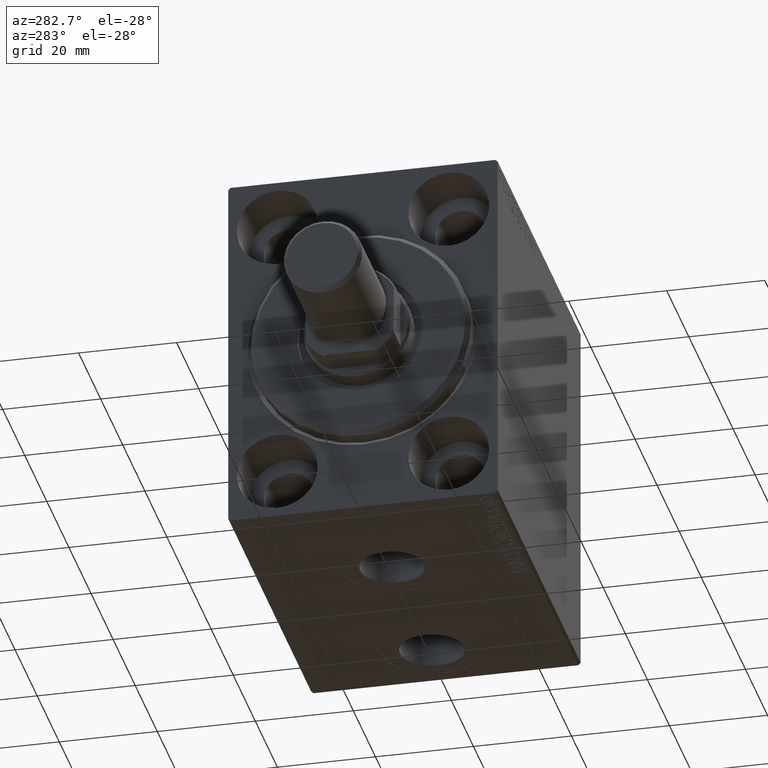
[diagram: clean part render]
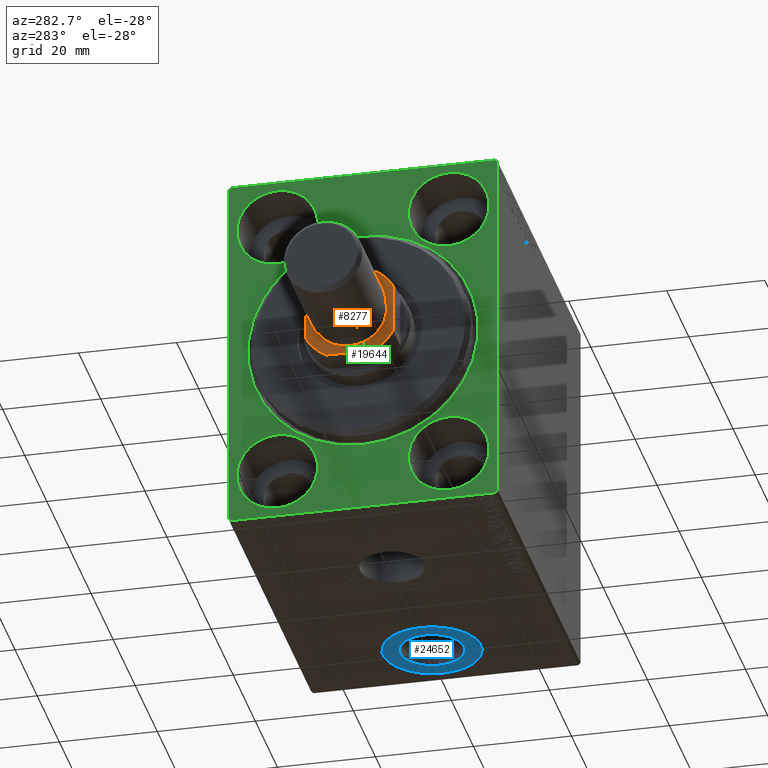
[diagram: same view with three faces highlighted in distinct colors, each labeled with its STEP entity id]
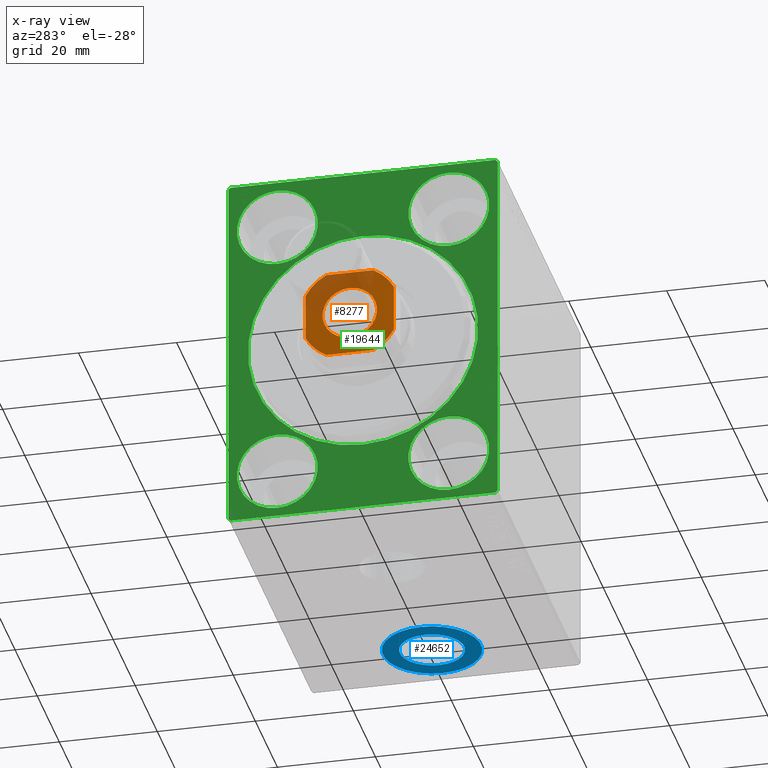
[diagram: x-ray of the same camera — body ghosted, the three highlighted faces saturated]
A machine part, auxiliary view with three faces highlighted in distinct colors.
The next image is the same camera in x-ray (body ghosted, the three faces saturated) — at least one of them is partly hidden behind the body in this view.
Their STEP definitions:

[orange] entity #8277 — the highlighted planar face has unit normal (-1, 0, 0).
#79 = EDGE_CURVE ( 'NONE', #19859, #1246, #26807, .T. ) ;
#420 = DIRECTION ( 'NONE',  ( 1.000000000000000000, 0.000000000000000000, 0.000000000000000000 ) ) ;
#1246 = VERTEX_POINT ( 'NONE', #35240 ) ;
#1555 = DIRECTION ( 'NONE',  ( 1.927470528863119049E-16, -1.000000000000000000, 0.000000000000000000 ) ) ;
#1959 = CARTESIAN_POINT ( 'NONE',  ( -4.799999999999990941, 8.999999999999998224, 77.00000000000001421 ) ) ;
#2113 = ORIENTED_EDGE ( 'NONE', *, *, #32366, .T. ) ;
#2427 = EDGE_CURVE ( 'NONE', #22392, #29616, #27539, .T. ) ;
#2476 = VECTOR ( 'NONE', #3051, 1000.000000000000000 ) ;
#2922 = DIRECTION ( 'NONE',  ( -0.000000000000000000, 0.000000000000000000, 1.000000000000000000 ) ) ;
#3051 = DIRECTION ( 'NONE',  ( 1.000000000000000000, 0.000000000000000000, 0.000000000000000000 ) ) ;
#3368 = EDGE_CURVE ( 'NONE', #27642, #13443, #26939, .T. ) ;
#3745 = ORIENTED_EDGE ( 'NONE', *, *, #43613, .T. ) ;
#4181 = DIRECTION ( 'NONE',  ( -0.000000000000000000, 0.000000000000000000, 1.000000000000000000 ) ) ;
#4270 = ORIENTED_EDGE ( 'NONE', *, *, #24819, .T. ) ;
#4877 = AXIS2_PLACEMENT_3D ( 'NONE', #18118, #4181, #17901 ) ;
#4945 = CARTESIAN_POINT ( 'NONE',  ( 0.000000000000000000, 0.000000000000000000, 77.00000000000001421 ) ) ;
#5258 = ORIENTED_EDGE ( 'NONE', *, *, #2427, .T. ) ;
#5814 = PLANE ( 'NONE',  #14004 ) ;
#6307 = VERTEX_POINT ( 'NONE', #34653 ) ;
#6482 = CARTESIAN_POINT ( 'NONE',  ( 0.000000000000000000, 0.000000000000000000, 77.00000000000001421 ) ) ;
#6722 = CARTESIAN_POINT ( 'NONE',  ( -9.000000000000001776, 8.999999999999998224, 77.00000000000001421 ) ) ;
#6816 = EDGE_CURVE ( 'NONE', #1246, #19859, #25558, .T. ) ;
#7432 = AXIS2_PLACEMENT_3D ( 'NONE', #4945, #18660, #7876 ) ;
#7876 = DIRECTION ( 'NONE',  ( 1.000000000000000000, 0.000000000000000000, 0.000000000000000000 ) ) ;
#8277 = ADVANCED_FACE ( 'NONE', ( #33902, #30531 ), #5814, .T. ) ;
#8721 = CIRCLE ( 'NONE', #36693, 10.19999999999999929 ) ;
#8967 = DIRECTION ( 'NONE',  ( -0.000000000000000000, 0.000000000000000000, 1.000000000000000000 ) ) ;
#10476 = CARTESIAN_POINT ( 'NONE',  ( -8.999999999999998224, -9.000000000000001776, 77.00000000000001421 ) ) ;
#11221 = VERTEX_POINT ( 'NONE', #36900 ) ;
#12330 = EDGE_LOOP ( 'NONE', ( #19745, #4270, #31729, #2113, #3745, #38046, #5258, #43104 ) ) ;
#12572 = DIRECTION ( 'NONE',  ( -1.000000000000000000, -0.000000000000000000, -0.000000000000000000 ) ) ;
#13227 = CARTESIAN_POINT ( 'NONE',  ( 0.000000000000000000, 0.000000000000000000, 77.00000000000001421 ) ) ;
#13371 = DIRECTION ( 'NONE',  ( -1.927470528863119049E-16, 1.000000000000000000, -0.000000000000000000 ) ) ;
#13443 = VERTEX_POINT ( 'NONE', #1959 ) ;
#13894 = VERTEX_POINT ( 'NONE', #14948 ) ;
#14004 = AXIS2_PLACEMENT_3D ( 'NONE', #13227, #8967, #44001 ) ;
#14044 = DIRECTION ( 'NONE',  ( 1.000000000000000000, 0.000000000000000000, 0.000000000000000000 ) ) ;
#14350 = DIRECTION ( 'NONE',  ( -0.000000000000000000, 0.000000000000000000, 1.000000000000000000 ) ) ;
#14709 = VECTOR ( 'NONE', #12572, 1000.000000000000000 ) ;
#14948 = CARTESIAN_POINT ( 'NONE',  ( -9.000000000000001776, 4.799999999999986500, 77.00000000000001421 ) ) ;
#15655 = ORIENTED_EDGE ( 'NONE', *, *, #6816, .T. ) ;
#16330 = CARTESIAN_POINT ( 'NONE',  ( 4.800000000000012257, 8.999999999999998224, 77.00000000000001421 ) ) ;
#16387 = EDGE_CURVE ( 'NONE', #6307, #36266, #36739, .T. ) ;
#17394 = CARTESIAN_POINT ( 'NONE',  ( -5.550000000000013145, 6.796789735267826558E-16, 77.00000000000001421 ) ) ;
#17901 = DIRECTION ( 'NONE',  ( 1.000000000000000000, 0.000000000000000000, 0.000000000000000000 ) ) ;
#18118 = CARTESIAN_POINT ( 'NONE',  ( 0.000000000000000000, 0.000000000000000000, 77.00000000000001421 ) ) ;
#18335 = VECTOR ( 'NONE', #13371, 1000.000000000000000 ) ;
#18660 = DIRECTION ( 'NONE',  ( 0.000000000000000000, -0.000000000000000000, -1.000000000000000000 ) ) ;
#19745 = ORIENTED_EDGE ( 'NONE', *, *, #16387, .T. ) ;
#19859 = VERTEX_POINT ( 'NONE', #17394 ) ;
#19893 = CARTESIAN_POINT ( 'NONE',  ( 8.999999999999998224, 8.999999999999998224, 77.00000000000001421 ) ) ;
#19967 = DIRECTION ( 'NONE',  ( 0.000000000000000000, -0.000000000000000000, -1.000000000000000000 ) ) ;
#20132 = CARTESIAN_POINT ( 'NONE',  ( 0.000000000000000000, 0.000000000000000000, 77.00000000000001421 ) ) ;
#20179 = ORIENTED_EDGE ( 'NONE', *, *, #79, .T. ) ;
#20667 = CARTESIAN_POINT ( 'NONE',  ( 0.000000000000000000, 0.000000000000000000, 77.00000000000001421 ) ) ;
#21459 = AXIS2_PLACEMENT_3D ( 'NONE', #20667, #14350, #420 ) ;
#22392 = VERTEX_POINT ( 'NONE', #26697 ) ;
#23557 = DIRECTION ( 'NONE',  ( 1.000000000000000000, 0.000000000000000000, 0.000000000000000000 ) ) ;
#24819 = EDGE_CURVE ( 'NONE', #36266, #27642, #38597, .T. ) ;
#25558 = CIRCLE ( 'NONE', #37041, 5.550000000000013145 ) ;
#26192 = CARTESIAN_POINT ( 'NONE',  ( 8.999999999999998224, 4.800000000000010481, 77.00000000000001421 ) ) ;
#26697 = CARTESIAN_POINT ( 'NONE',  ( -4.799999999999995381, -9.000000000000001776, 77.00000000000001421 ) ) ;
#26807 = CIRCLE ( 'NONE', #7432, 5.550000000000013145 ) ;
#26939 = LINE ( 'NONE', #6722, #14709 ) ;
#27416 = DIRECTION ( 'NONE',  ( 1.000000000000000000, 0.000000000000000000, 0.000000000000000000 ) ) ;
#27539 = LINE ( 'NONE', #10476, #2476 ) ;
#27642 = VERTEX_POINT ( 'NONE', #16330 ) ;
#28829 = VECTOR ( 'NONE', #1555, 1000.000000000000000 ) ;
#29616 = VERTEX_POINT ( 'NONE', #43297 ) ;
#29670 = CARTESIAN_POINT ( 'NONE',  ( 0.000000000000000000, 0.000000000000000000, 77.00000000000001421 ) ) ;
#30531 = FACE_OUTER_BOUND ( 'NONE', #12330, .T. ) ;
#31729 = ORIENTED_EDGE ( 'NONE', *, *, #3368, .T. ) ;
#31830 = EDGE_LOOP ( 'NONE', ( #15655, #20179 ) ) ;
#32366 = EDGE_CURVE ( 'NONE', #13443, #13894, #34394, .T. ) ;
#33902 = FACE_BOUND ( 'NONE', #31830, .T. ) ;
#34058 = DIRECTION ( 'NONE',  ( -0.000000000000000000, 0.000000000000000000, 1.000000000000000000 ) ) ;
#34394 = CIRCLE ( 'NONE', #21459, 10.19999999999999396 ) ;
#34653 = CARTESIAN_POINT ( 'NONE',  ( 9.000000000000001776, -4.800000000000007816, 77.00000000000001421 ) ) ;
#35240 = CARTESIAN_POINT ( 'NONE',  ( 5.550000000000013145, 0.000000000000000000, 77.00000000000001421 ) ) ;
#35345 = CIRCLE ( 'NONE', #36064, 10.20000000000000462 ) ;
#36064 = AXIS2_PLACEMENT_3D ( 'NONE', #20132, #34058, #14044 ) ;
#36266 = VERTEX_POINT ( 'NONE', #26192 ) ;
#36693 = AXIS2_PLACEMENT_3D ( 'NONE', #29670, #2922, #27416 ) ;
#36739 = LINE ( 'NONE', #19893, #18335 ) ;
#36900 = CARTESIAN_POINT ( 'NONE',  ( -8.999999999999998224, -4.799999999999999822, 77.00000000000001421 ) ) ;
#37041 = AXIS2_PLACEMENT_3D ( 'NONE', #6482, #19967, #23557 ) ;
#38046 = ORIENTED_EDGE ( 'NONE', *, *, #42668, .T. ) ;
#38597 = CIRCLE ( 'NONE', #4877, 10.20000000000000462 ) ;
#39979 = CARTESIAN_POINT ( 'NONE',  ( -9.000000000000001776, 8.999999999999998224, 77.00000000000001421 ) ) ;
#41946 = EDGE_CURVE ( 'NONE', #29616, #6307, #35345, .T. ) ;
#42668 = EDGE_CURVE ( 'NONE', #11221, #22392, #8721, .T. ) ;
#42909 = LINE ( 'NONE', #39979, #28829 ) ;
#43104 = ORIENTED_EDGE ( 'NONE', *, *, #41946, .T. ) ;
#43297 = CARTESIAN_POINT ( 'NONE',  ( 4.800000000000006928, -9.000000000000001776, 77.00000000000001421 ) ) ;
#43613 = EDGE_CURVE ( 'NONE', #13894, #11221, #42909, .T. ) ;
#44001 = DIRECTION ( 'NONE',  ( 1.000000000000000000, 0.000000000000000000, 0.000000000000000000 ) ) ;

[blue] entity #24652 — the highlighted planar face has unit normal (0, 0, -1).
#2605 = ORIENTED_EDGE ( 'NONE', *, *, #44382, .T. ) ;
#4464 = EDGE_CURVE ( 'NONE', #29750, #41825, #26238, .T. ) ;
#5103 = CARTESIAN_POINT ( 'NONE',  ( 62.49999999999999289, -7.523326685254106813E-15, -37.39999999999999858 ) ) ;
#5157 = AXIS2_PLACEMENT_3D ( 'NONE', #25418, #38238, #8343 ) ;
#5548 = DIRECTION ( 'NONE',  ( 0.000000000000000000, 0.000000000000000000, -1.000000000000000000 ) ) ;
#6905 = DIRECTION ( 'NONE',  ( -1.000000000000000000, 0.000000000000000000, -0.000000000000000000 ) ) ;
#7777 = AXIS2_PLACEMENT_3D ( 'NONE', #37678, #30724, #6905 ) ;
#8343 = DIRECTION ( 'NONE',  ( -1.000000000000000000, 0.000000000000000000, 0.000000000000000000 ) ) ;
#8510 = DIRECTION ( 'NONE',  ( 0.000000000000000000, 0.000000000000000000, -1.000000000000000000 ) ) ;
#9365 = AXIS2_PLACEMENT_3D ( 'NONE', #42656, #8510, #35922 ) ;
#9603 = FACE_BOUND ( 'NONE', #26368, .T. ) ;
#11636 = DIRECTION ( 'NONE',  ( -1.000000000000000000, 0.000000000000000000, 0.000000000000000000 ) ) ;
#12522 = AXIS2_PLACEMENT_3D ( 'NONE', #5103, #5548, #11636 ) ;
#12950 = ORIENTED_EDGE ( 'NONE', *, *, #4464, .F. ) ;
#13503 = EDGE_CURVE ( 'NONE', #41825, #29750, #36899, .T. ) ;
#16463 = DIRECTION ( 'NONE',  ( 0.000000000000000000, 0.000000000000000000, -1.000000000000000000 ) ) ;
#17255 = CIRCLE ( 'NONE', #9365, 10.00000000000000178 ) ;
#19719 = FACE_OUTER_BOUND ( 'NONE', #29575, .T. ) ;
#23425 = VERTEX_POINT ( 'NONE', #37727 ) ;
#23626 = ORIENTED_EDGE ( 'NONE', *, *, #13503, .F. ) ;
#24538 = CIRCLE ( 'NONE', #5157, 10.00000000000000178 ) ;
#24652 = ADVANCED_FACE ( 'NONE', ( #9603, #19719 ), #37016, .T. ) ;
#25418 = CARTESIAN_POINT ( 'NONE',  ( 62.49999999999999289, -7.523326685254106813E-15, -37.39999999999999858 ) ) ;
#25572 = VERTEX_POINT ( 'NONE', #33011 ) ;
#26238 = CIRCLE ( 'NONE', #30533, 6.580000000000002736 ) ;
#26368 = EDGE_LOOP ( 'NONE', ( #12950, #23626 ) ) ;
#27675 = ORIENTED_EDGE ( 'NONE', *, *, #35490, .T. ) ;
#29575 = EDGE_LOOP ( 'NONE', ( #2605, #27675 ) ) ;
#29750 = VERTEX_POINT ( 'NONE', #37178 ) ;
#30533 = AXIS2_PLACEMENT_3D ( 'NONE', #43203, #16463, #37354 ) ;
#30724 = DIRECTION ( 'NONE',  ( 0.000000000000000000, 0.000000000000000000, -1.000000000000000000 ) ) ;
#33011 = CARTESIAN_POINT ( 'NONE',  ( 52.49999999999999289, -7.523326685254106813E-15, -37.39999999999999858 ) ) ;
#35490 = EDGE_CURVE ( 'NONE', #23425, #25572, #17255, .T. ) ;
#35882 = CARTESIAN_POINT ( 'NONE',  ( 69.07999999999999829, -6.717509091415148559E-15, -37.39999999999999858 ) ) ;
#35922 = DIRECTION ( 'NONE',  ( -1.000000000000000000, 0.000000000000000000, 0.000000000000000000 ) ) ;
#36899 = CIRCLE ( 'NONE', #12522, 6.580000000000002736 ) ;
#37016 = PLANE ( 'NONE',  #7777 ) ;
#37178 = CARTESIAN_POINT ( 'NONE',  ( 55.91999999999998749, -7.523326685254106813E-15, -37.39999999999999858 ) ) ;
#37354 = DIRECTION ( 'NONE',  ( -1.000000000000000000, 0.000000000000000000, 0.000000000000000000 ) ) ;
#37678 = CARTESIAN_POINT ( 'NONE',  ( 62.49999999999999289, -7.523326685254106813E-15, -37.39999999999999858 ) ) ;
#37727 = CARTESIAN_POINT ( 'NONE',  ( 72.50000000000000000, -6.298679886106752964E-15, -37.39999999999999858 ) ) ;
#38238 = DIRECTION ( 'NONE',  ( 0.000000000000000000, 0.000000000000000000, -1.000000000000000000 ) ) ;
#41825 = VERTEX_POINT ( 'NONE', #35882 ) ;
#42656 = CARTESIAN_POINT ( 'NONE',  ( 62.49999999999999289, -7.523326685254106813E-15, -37.39999999999999858 ) ) ;
#43203 = CARTESIAN_POINT ( 'NONE',  ( 62.49999999999999289, -7.523326685254106813E-15, -37.39999999999999858 ) ) ;
#44382 = EDGE_CURVE ( 'NONE', #25572, #23425, #24538, .T. ) ;

[green] entity #19644 — the highlighted planar face has unit normal (1, 0, 0).
#63 = EDGE_LOOP ( 'NONE', ( #34767, #39577 ) ) ;
#135 = EDGE_CURVE ( 'NONE', #4386, #20081, #8884, .T. ) ;
#558 = ORIENTED_EDGE ( 'NONE', *, *, #1017, .F. ) ;
#1017 = EDGE_CURVE ( 'NONE', #1895, #30711, #20403, .T. ) ;
#1131 = CARTESIAN_POINT ( 'NONE',  ( 0.000000000000000000, -17.50000000000000355, -27.50000000000000355 ) ) ;
#1201 = VERTEX_POINT ( 'NONE', #10321 ) ;
#1374 = DIRECTION ( 'NONE',  ( 0.000000000000000000, 0.000000000000000000, 1.000000000000000000 ) ) ;
#1720 = ORIENTED_EDGE ( 'NONE', *, *, #14399, .F. ) ;
#1865 = EDGE_LOOP ( 'NONE', ( #8974, #558 ) ) ;
#1895 = VERTEX_POINT ( 'NONE', #9750 ) ;
#1921 = FACE_BOUND ( 'NONE', #1865, .T. ) ;
#2048 = CARTESIAN_POINT ( 'NONE',  ( 0.000000000000000000, -27.50000000000000355, 37.50000000000000000 ) ) ;
#2663 = CARTESIAN_POINT ( 'NONE',  ( 0.000000000000000000, -27.50000000000000355, -37.50000000000000000 ) ) ;
#3240 = DIRECTION ( 'NONE',  ( 0.000000000000000000, 0.000000000000000000, -1.000000000000000000 ) ) ;
#3809 = CARTESIAN_POINT ( 'NONE',  ( 0.000000000000000000, 27.00000000000001066, 37.50000000000000711 ) ) ;
#4093 = CIRCLE ( 'NONE', #31375, 8.250000000000000000 ) ;
#4386 = VERTEX_POINT ( 'NONE', #18953 ) ;
#4851 = AXIS2_PLACEMENT_3D ( 'NONE', #23288, #26878, #19931 ) ;
#5197 = DIRECTION ( 'NONE',  ( -0.000000000000000000, -0.7071067811865474617, 0.7071067811865474617 ) ) ;
#5481 = VERTEX_POINT ( 'NONE', #22055 ) ;
#5550 = CIRCLE ( 'NONE', #4851, 23.50000000000000355 ) ;
#6142 = ORIENTED_EDGE ( 'NONE', *, *, #40275, .F. ) ;
#6546 = VECTOR ( 'NONE', #18911, 1000.000000000000000 ) ;
#6628 = PLANE ( 'NONE',  #29136 ) ;
#6798 = CARTESIAN_POINT ( 'NONE',  ( 0.000000000000000000, -17.49999999999999645, 27.49999999999999645 ) ) ;
#6847 = CARTESIAN_POINT ( 'NONE',  ( 0.000000000000000000, 0.000000000000000000, 0.000000000000000000 ) ) ;
#6931 = EDGE_CURVE ( 'NONE', #20081, #4386, #32722, .T. ) ;
#7042 = LINE ( 'NONE', #21618, #16148 ) ;
#7235 = DIRECTION ( 'NONE',  ( -1.000000000000000000, 0.000000000000000000, 0.000000000000000000 ) ) ;
#7356 = DIRECTION ( 'NONE',  ( 0.000000000000000000, 0.000000000000000000, 1.000000000000000000 ) ) ;
#7506 = ORIENTED_EDGE ( 'NONE', *, *, #27251, .F. ) ;
#7721 = EDGE_CURVE ( 'NONE', #34834, #14341, #7042, .T. ) ;
#7865 = ORIENTED_EDGE ( 'NONE', *, *, #34153, .F. ) ;
#7872 = ORIENTED_EDGE ( 'NONE', *, *, #37701, .F. ) ;
#8066 = EDGE_CURVE ( 'NONE', #34834, #36885, #10576, .T. ) ;
#8069 = VERTEX_POINT ( 'NONE', #31238 ) ;
#8110 = CARTESIAN_POINT ( 'NONE',  ( 0.000000000000000000, 17.49999999999999645, -19.25000000000000355 ) ) ;
#8164 = CARTESIAN_POINT ( 'NONE',  ( 0.000000000000000000, -17.49999999999999645, 27.49999999999999645 ) ) ;
#8185 = CARTESIAN_POINT ( 'NONE',  ( 0.000000000000000000, -17.49999999999999645, 35.74999999999999289 ) ) ;
#8199 = ORIENTED_EDGE ( 'NONE', *, *, #44223, .F. ) ;
#8208 = AXIS2_PLACEMENT_3D ( 'NONE', #1131, #39338, #24733 ) ;
#8246 = VERTEX_POINT ( 'NONE', #16378 ) ;
#8667 = FACE_BOUND ( 'NONE', #37387, .T. ) ;
#8884 = CIRCLE ( 'NONE', #23958, 8.249999999999992895 ) ;
#8974 = ORIENTED_EDGE ( 'NONE', *, *, #33053, .F. ) ;
#9750 = CARTESIAN_POINT ( 'NONE',  ( 0.000000000000000000, -17.50000000000000355, -35.75000000000000711 ) ) ;
#9991 = CIRCLE ( 'NONE', #17875, 23.50000000000000355 ) ;
#10321 = CARTESIAN_POINT ( 'NONE',  ( 0.000000000000000000, -27.50000000000000355, -37.00000000000000000 ) ) ;
#10431 = DIRECTION ( 'NONE',  ( 0.000000000000000000, 0.000000000000000000, 1.000000000000000000 ) ) ;
#10576 = LINE ( 'NONE', #3809, #14802 ) ;
#10592 = VECTOR ( 'NONE', #33729, 1000.000000000000114 ) ;
#11240 = ORIENTED_EDGE ( 'NONE', *, *, #27387, .F. ) ;
#11246 = EDGE_LOOP ( 'NONE', ( #7872, #35428, #25103, #18578, #1720, #24381, #11240, #17259 ) ) ;
#11322 = DIRECTION ( 'NONE',  ( 0.000000000000000000, 0.000000000000000000, 1.000000000000000000 ) ) ;
#11473 = CARTESIAN_POINT ( 'NONE',  ( 0.000000000000000000, 17.50000000000000355, 27.49999999999999645 ) ) ;
#11712 = DIRECTION ( 'NONE',  ( 0.000000000000000000, 0.000000000000000000, -1.000000000000000000 ) ) ;
#12356 = CIRCLE ( 'NONE', #37471, 8.249999999999992895 ) ;
#12390 = CARTESIAN_POINT ( 'NONE',  ( 0.000000000000000000, -27.00000000000000355, -37.50000000000000000 ) ) ;
#12436 = DIRECTION ( 'NONE',  ( -0.000000000000000000, 0.7071067811865474617, 0.7071067811865474617 ) ) ;
#12698 = FACE_BOUND ( 'NONE', #34876, .T. ) ;
#13358 = VERTEX_POINT ( 'NONE', #41960 ) ;
#13657 = CARTESIAN_POINT ( 'NONE',  ( 0.000000000000000000, 27.49999999999999645, 37.00000000000001421 ) ) ;
#13665 = CARTESIAN_POINT ( 'NONE',  ( 0.000000000000000000, 17.50000000000000355, 27.49999999999999645 ) ) ;
#14341 = VERTEX_POINT ( 'NONE', #36399 ) ;
#14399 = EDGE_CURVE ( 'NONE', #8069, #36885, #32815, .T. ) ;
#14459 = CARTESIAN_POINT ( 'NONE',  ( 0.000000000000000000, 27.00000000000001066, 37.50000000000000711 ) ) ;
#14802 = VECTOR ( 'NONE', #17530, 1000.000000000000000 ) ;
#15391 = ORIENTED_EDGE ( 'NONE', *, *, #32227, .T. ) ;
#15584 = LINE ( 'NONE', #36251, #22618 ) ;
#15937 = DIRECTION ( 'NONE',  ( 0.000000000000000000, 0.000000000000000000, 1.000000000000000000 ) ) ;
#16148 = VECTOR ( 'NONE', #24114, 1000.000000000000000 ) ;
#16378 = CARTESIAN_POINT ( 'NONE',  ( 0.000000000000000000, 17.49999999999999645, -35.75000000000000711 ) ) ;
#16591 = EDGE_CURVE ( 'NONE', #21321, #14341, #15584, .T. ) ;
#17251 = DIRECTION ( 'NONE',  ( -1.000000000000000000, 0.000000000000000000, 0.000000000000000000 ) ) ;
#17259 = ORIENTED_EDGE ( 'NONE', *, *, #37640, .T. ) ;
#17390 = CARTESIAN_POINT ( 'NONE',  ( 0.000000000000000000, 17.49999999999999645, -27.50000000000000355 ) ) ;
#17530 = DIRECTION ( 'NONE',  ( -0.000000000000000000, 0.7071067811865426878, -0.7071067811865524577 ) ) ;
#17875 = AXIS2_PLACEMENT_3D ( 'NONE', #29652, #42482, #11712 ) ;
#18215 = CARTESIAN_POINT ( 'NONE',  ( 0.000000000000000000, 0.000000000000000000, 23.50000000000000355 ) ) ;
#18578 = ORIENTED_EDGE ( 'NONE', *, *, #8066, .T. ) ;
#18656 = DIRECTION ( 'NONE',  ( -1.000000000000000000, 0.000000000000000000, 0.000000000000000000 ) ) ;
#18911 = DIRECTION ( 'NONE',  ( 0.000000000000000000, 0.000000000000000000, -1.000000000000000000 ) ) ;
#18953 = CARTESIAN_POINT ( 'NONE',  ( 0.000000000000000000, 17.50000000000000355, 35.74999999999999289 ) ) ;
#19354 = CIRCLE ( 'NONE', #34428, 8.250000000000000000 ) ;
#19644 = ADVANCED_FACE ( 'NONE', ( #12698, #8667, #22374, #32714, #1921, #40552 ), #6628, .F. ) ;
#19758 = LINE ( 'NONE', #2663, #27083 ) ;
#19931 = DIRECTION ( 'NONE',  ( 0.000000000000000000, 0.000000000000000000, -1.000000000000000000 ) ) ;
#20081 = VERTEX_POINT ( 'NONE', #38451 ) ;
#20250 = CARTESIAN_POINT ( 'NONE',  ( 0.000000000000000000, 27.50000000000000355, -37.00000000000000000 ) ) ;
#20403 = CIRCLE ( 'NONE', #8208, 8.250000000000000000 ) ;
#21321 = VERTEX_POINT ( 'NONE', #42659 ) ;
#21618 = CARTESIAN_POINT ( 'NONE',  ( 0.000000000000000000, 27.49999999999999645, 37.50000000000000711 ) ) ;
#21796 = DIRECTION ( 'NONE',  ( 0.000000000000000000, 0.000000000000000000, 1.000000000000000000 ) ) ;
#22055 = CARTESIAN_POINT ( 'NONE',  ( 0.000000000000000000, 27.00000000000000355, -37.50000000000000000 ) ) ;
#22266 = CIRCLE ( 'NONE', #37338, 8.250000000000000000 ) ;
#22374 = FACE_BOUND ( 'NONE', #39545, .T. ) ;
#22618 = VECTOR ( 'NONE', #12436, 1000.000000000000114 ) ;
#22926 = CARTESIAN_POINT ( 'NONE',  ( 0.000000000000000000, -17.50000000000000355, -27.50000000000000355 ) ) ;
#23288 = CARTESIAN_POINT ( 'NONE',  ( 0.000000000000000000, 0.000000000000000000, 0.000000000000000000 ) ) ;
#23958 = AXIS2_PLACEMENT_3D ( 'NONE', #11473, #38882, #21796 ) ;
#24093 = DIRECTION ( 'NONE',  ( 0.000000000000000000, 0.000000000000000000, 1.000000000000000000 ) ) ;
#24114 = DIRECTION ( 'NONE',  ( 0.000000000000000000, -1.000000000000000000, -1.261617073437677999E-16 ) ) ;
#24381 = ORIENTED_EDGE ( 'NONE', *, *, #28067, .T. ) ;
#24733 = DIRECTION ( 'NONE',  ( 0.000000000000000000, 0.000000000000000000, 1.000000000000000000 ) ) ;
#25103 = ORIENTED_EDGE ( 'NONE', *, *, #7721, .F. ) ;
#26296 = AXIS2_PLACEMENT_3D ( 'NONE', #13665, #17251, #7356 ) ;
#26878 = DIRECTION ( 'NONE',  ( 1.000000000000000000, 0.000000000000000000, 0.000000000000000000 ) ) ;
#27083 = VECTOR ( 'NONE', #27594, 1000.000000000000000 ) ;
#27251 = EDGE_CURVE ( 'NONE', #40686, #8246, #4093, .T. ) ;
#27387 = EDGE_CURVE ( 'NONE', #13358, #5481, #19758, .T. ) ;
#27594 = DIRECTION ( 'NONE',  ( 0.000000000000000000, 1.000000000000000000, 0.000000000000000000 ) ) ;
#27693 = EDGE_CURVE ( 'NONE', #31269, #31339, #5550, .T. ) ;
#27984 = CARTESIAN_POINT ( 'NONE',  ( 0.000000000000000000, -17.50000000000000355, -19.25000000000000355 ) ) ;
#28067 = EDGE_CURVE ( 'NONE', #8069, #5481, #34400, .T. ) ;
#29008 = DIRECTION ( 'NONE',  ( -1.000000000000000000, 0.000000000000000000, 0.000000000000000000 ) ) ;
#29136 = AXIS2_PLACEMENT_3D ( 'NONE', #6847, #30436, #3240 ) ;
#29643 = DIRECTION ( 'NONE',  ( 0.000000000000000000, -9.251858538542970348E-17, 1.000000000000000000 ) ) ;
#29652 = CARTESIAN_POINT ( 'NONE',  ( 0.000000000000000000, 0.000000000000000000, 0.000000000000000000 ) ) ;
#30216 = VECTOR ( 'NONE', #5197, 1000.000000000000114 ) ;
#30436 = DIRECTION ( 'NONE',  ( 1.000000000000000000, 0.000000000000000000, 0.000000000000000000 ) ) ;
#30663 = DIRECTION ( 'NONE',  ( -1.000000000000000000, 0.000000000000000000, 0.000000000000000000 ) ) ;
#30711 = VERTEX_POINT ( 'NONE', #27984 ) ;
#31238 = CARTESIAN_POINT ( 'NONE',  ( 0.000000000000000000, 27.50000000000000355, -37.00000000000000000 ) ) ;
#31269 = VERTEX_POINT ( 'NONE', #40164 ) ;
#31339 = VERTEX_POINT ( 'NONE', #18215 ) ;
#31375 = AXIS2_PLACEMENT_3D ( 'NONE', #42915, #18656, #15937 ) ;
#31884 = VERTEX_POINT ( 'NONE', #41002 ) ;
#32227 = EDGE_CURVE ( 'NONE', #31339, #31269, #9991, .T. ) ;
#32714 = FACE_BOUND ( 'NONE', #63, .T. ) ;
#32722 = CIRCLE ( 'NONE', #26296, 8.249999999999992895 ) ;
#32815 = LINE ( 'NONE', #36612, #39787 ) ;
#33053 = EDGE_CURVE ( 'NONE', #30711, #1895, #19354, .T. ) ;
#33729 = DIRECTION ( 'NONE',  ( 0.000000000000000000, -0.7071067811865474617, -0.7071067811865474617 ) ) ;
#34118 = ORIENTED_EDGE ( 'NONE', *, *, #27693, .T. ) ;
#34153 = EDGE_CURVE ( 'NONE', #8246, #40686, #22266, .T. ) ;
#34400 = LINE ( 'NONE', #20250, #10592 ) ;
#34428 = AXIS2_PLACEMENT_3D ( 'NONE', #22926, #29008, #1374 ) ;
#34767 = ORIENTED_EDGE ( 'NONE', *, *, #135, .F. ) ;
#34834 = VERTEX_POINT ( 'NONE', #14459 ) ;
#34876 = EDGE_LOOP ( 'NONE', ( #15391, #34118 ) ) ;
#35428 = ORIENTED_EDGE ( 'NONE', *, *, #16591, .T. ) ;
#35990 = LINE ( 'NONE', #2048, #6546 ) ;
#36204 = LINE ( 'NONE', #12390, #30216 ) ;
#36251 = CARTESIAN_POINT ( 'NONE',  ( 0.000000000000000000, -27.50000000000000355, 37.00000000000001421 ) ) ;
#36399 = CARTESIAN_POINT ( 'NONE',  ( 0.000000000000000000, -27.00000000000001776, 37.50000000000000000 ) ) ;
#36612 = CARTESIAN_POINT ( 'NONE',  ( 0.000000000000000000, 27.50000000000000355, -37.50000000000000000 ) ) ;
#36885 = VERTEX_POINT ( 'NONE', #13657 ) ;
#37106 = VERTEX_POINT ( 'NONE', #8185 ) ;
#37338 = AXIS2_PLACEMENT_3D ( 'NONE', #17390, #30663, #10431 ) ;
#37387 = EDGE_LOOP ( 'NONE', ( #7506, #7865 ) ) ;
#37471 = AXIS2_PLACEMENT_3D ( 'NONE', #8164, #42094, #11322 ) ;
#37640 = EDGE_CURVE ( 'NONE', #13358, #1201, #36204, .T. ) ;
#37701 = EDGE_CURVE ( 'NONE', #21321, #1201, #35990, .T. ) ;
#38451 = CARTESIAN_POINT ( 'NONE',  ( 0.000000000000000000, 17.50000000000000355, 19.25000000000000000 ) ) ;
#38882 = DIRECTION ( 'NONE',  ( -1.000000000000000000, 0.000000000000000000, 0.000000000000000000 ) ) ;
#39338 = DIRECTION ( 'NONE',  ( -1.000000000000000000, 0.000000000000000000, 0.000000000000000000 ) ) ;
#39545 = EDGE_LOOP ( 'NONE', ( #6142, #8199 ) ) ;
#39577 = ORIENTED_EDGE ( 'NONE', *, *, #6931, .F. ) ;
#39787 = VECTOR ( 'NONE', #29643, 1000.000000000000000 ) ;
#40164 = CARTESIAN_POINT ( 'NONE',  ( 0.000000000000000000, 2.877919977996280715E-15, -23.50000000000000355 ) ) ;
#40275 = EDGE_CURVE ( 'NONE', #37106, #31884, #12356, .T. ) ;
#40311 = AXIS2_PLACEMENT_3D ( 'NONE', #6798, #7235, #24093 ) ;
#40552 = FACE_OUTER_BOUND ( 'NONE', #11246, .T. ) ;
#40686 = VERTEX_POINT ( 'NONE', #8110 ) ;
#41002 = CARTESIAN_POINT ( 'NONE',  ( 0.000000000000000000, -17.49999999999999645, 19.25000000000000000 ) ) ;
#41960 = CARTESIAN_POINT ( 'NONE',  ( 0.000000000000000000, -27.00000000000000355, -37.50000000000000000 ) ) ;
#42094 = DIRECTION ( 'NONE',  ( -1.000000000000000000, 0.000000000000000000, 0.000000000000000000 ) ) ;
#42482 = DIRECTION ( 'NONE',  ( 1.000000000000000000, 0.000000000000000000, 0.000000000000000000 ) ) ;
#42659 = CARTESIAN_POINT ( 'NONE',  ( 0.000000000000000000, -27.50000000000000355, 37.00000000000001421 ) ) ;
#42915 = CARTESIAN_POINT ( 'NONE',  ( 0.000000000000000000, 17.49999999999999645, -27.50000000000000355 ) ) ;
#43162 = CIRCLE ( 'NONE', #40311, 8.249999999999992895 ) ;
#44223 = EDGE_CURVE ( 'NONE', #31884, #37106, #43162, .T. ) ;